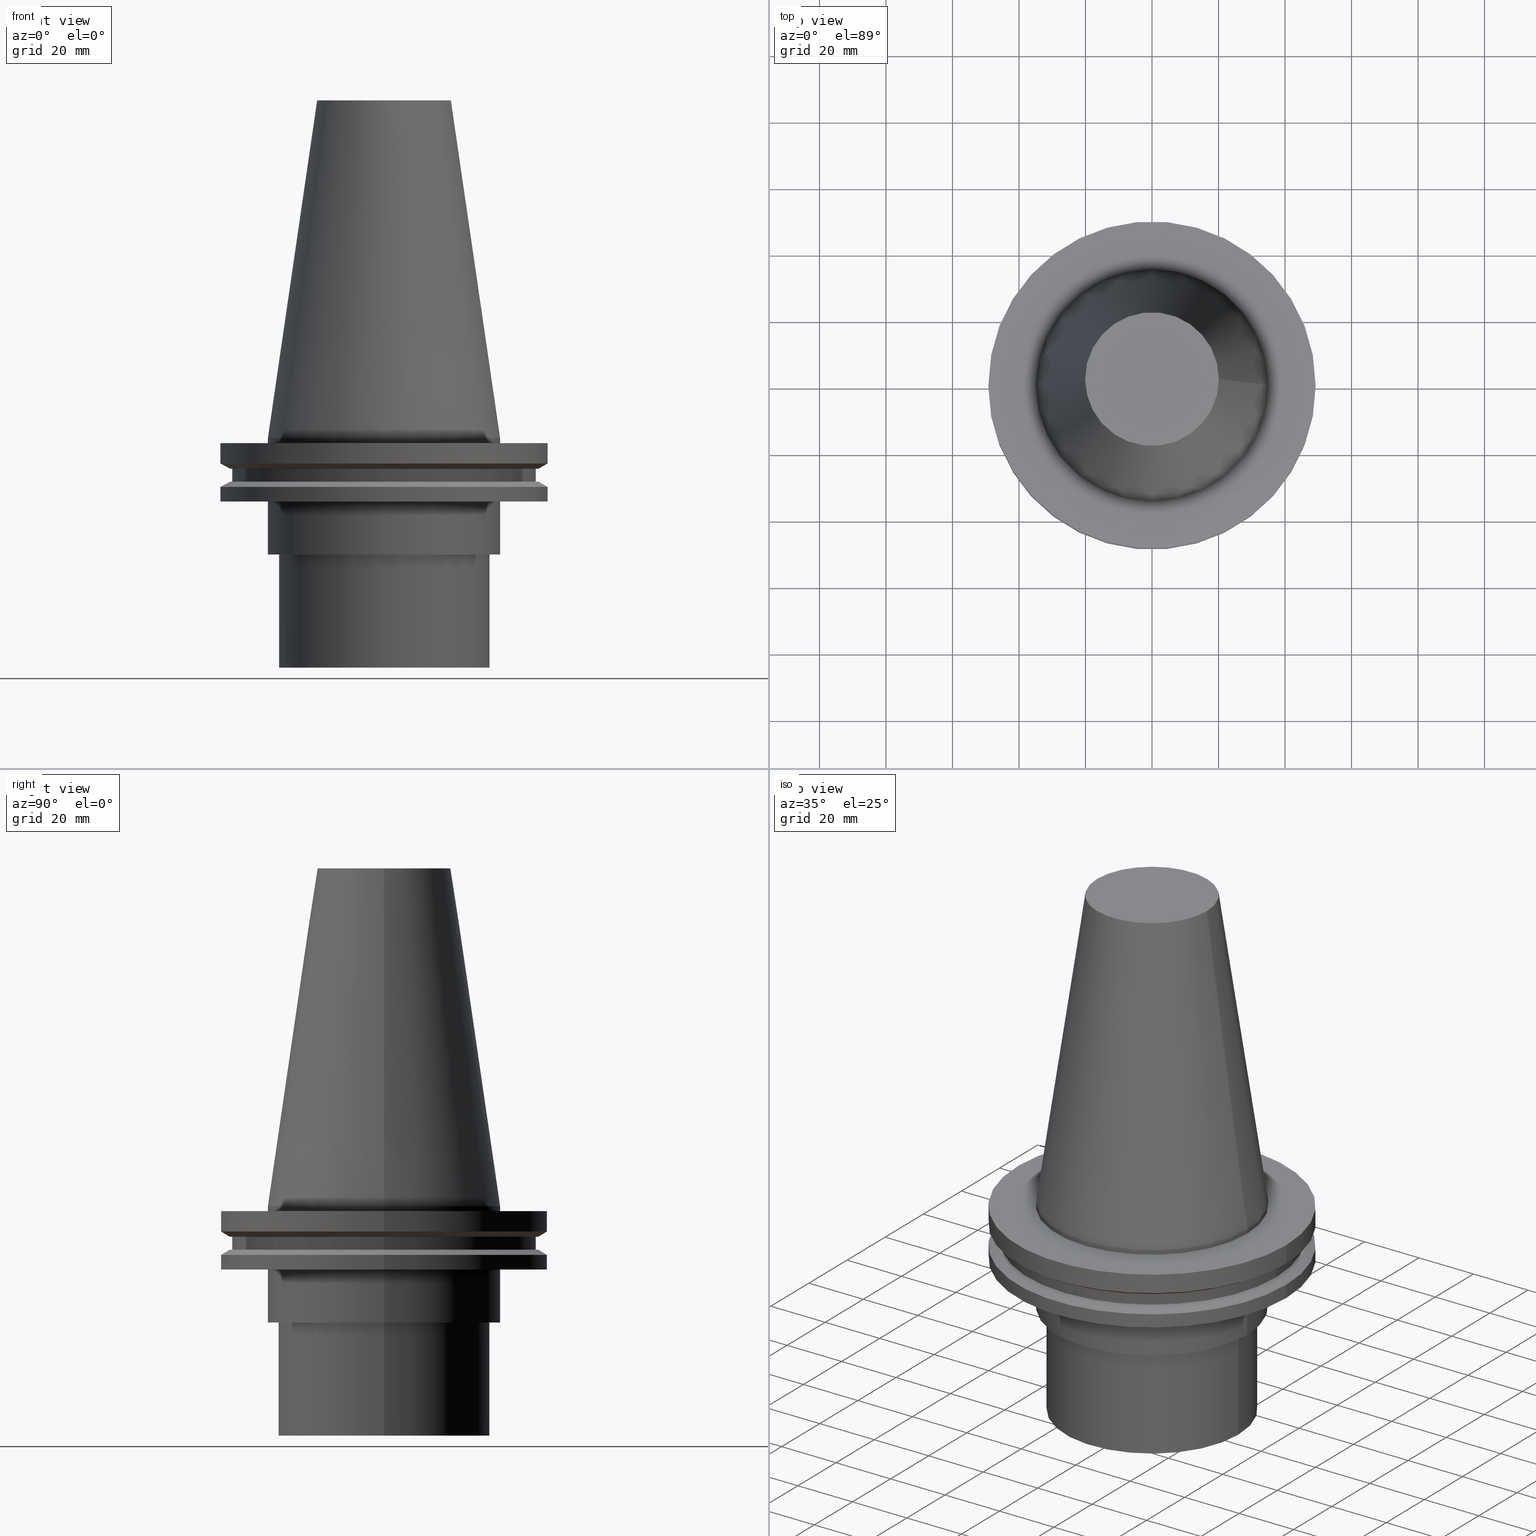
[diagram: canonical four-view strip — front | top / right | iso, engineering-drawing reading convention]
A machine part, canonical four-view strip (front | top / right | iso — engineering-drawing reading convention). The complete STEP part file that produces these views, byte-faithful:
ISO-10303-21;
HEADER;
FILE_DESCRIPTION (( 'STEP AP203' ),
    '1' );
FILE_NAME ('11.368.662.stp',
    '2022-03-09T15:21:46',
    ( '' ),
    ( '' ),
    'SwSTEP 2.0',
    'SolidWorks 2021',
    '' );
FILE_SCHEMA (( 'CONFIG_CONTROL_DESIGN' ));
ENDSEC;

DATA;
#1 = CARTESIAN_POINT ( 'NONE',  ( 0.000000000000000000, 0.000000000000000000, 101.5999999999999943 ) ) ;
#2 = AXIS2_PLACEMENT_3D ( 'NONE', #6, #103, #231 ) ;
#3 = PERSON_AND_ORGANIZATION_ROLE ( 'classification_officer' ) ;
#4 = EDGE_LOOP ( 'NONE', ( #79 ) ) ;
#5 = ORIENTED_EDGE ( 'NONE', *, *, #161, .T. ) ;
#6 = CARTESIAN_POINT ( 'NONE',  ( 0.000000000000000000, 0.000000000000000000, -19.04999999999999716 ) ) ;
#7 = UNCERTAINTY_MEASURE_WITH_UNIT (LENGTH_MEASURE( 1.000000000000000082E-05 ), #207, 'distance_accuracy_value', 'NONE');
#8 = FACE_OUTER_BOUND ( 'NONE', #294, .T. ) ;
#9 = APPROVAL_PERSON_ORGANIZATION ( #220, #266, #92 ) ;
#10 = ORIENTED_EDGE ( 'NONE', *, *, #45, .T. ) ;
#11 = ADVANCED_FACE ( 'NONE', ( #205, #357 ), #360, .F. ) ;
#12 = ADVANCED_FACE ( 'NONE', ( #273 ), #208, .F. ) ;
#13 = DIRECTION ( 'NONE',  ( -1.000000000000000000, 0.000000000000000000, -0.000000000000000000 ) ) ;
#14 = CARTESIAN_POINT ( 'NONE',  ( 0.000000000000000000, 0.000000000000000000, -9.204999999999991189 ) ) ;
#15 = DIRECTION ( 'NONE',  ( 1.000000000000000000, 0.000000000000000000, 0.000000000000000000 ) ) ;
#16 = AXIS2_PLACEMENT_3D ( 'NONE', #381, #241, #265 ) ;
#17 = AXIS2_PLACEMENT_3D ( 'NONE', #90, #144, #242 ) ;
#18 = CARTESIAN_POINT ( 'NONE',  ( 0.000000000000000000, 0.000000000000000000, -14.65761014474876944 ) ) ;
#19 = DIRECTION ( 'NONE',  ( -0.000000000000000000, -0.000000000000000000, 1.000000000000000000 ) ) ;
#20 = ADVANCED_FACE ( 'NONE', ( #322, #54 ), #301, .T. ) ;
#21 = CARTESIAN_POINT ( 'NONE',  ( 0.000000000000000000, 45.64500000000000313, -13.05499999999999794 ) ) ;
#22 = FACE_BOUND ( 'NONE', #102, .T. ) ;
#23 = CIRCLE ( 'NONE', #165, 31.75000000000000000 ) ;
#24 = APPLICATION_PROTOCOL_DEFINITION ( 'international standard', 'config_control_design', 1994, #38 ) ;
#25 = CIRCLE ( 'NONE', #250, 45.64500000000000313 ) ;
#26 = CARTESIAN_POINT ( 'NONE',  ( 0.000000000000000000, 0.000000000000000000, -13.05499999999999794 ) ) ;
#27 = VERTEX_POINT ( 'NONE', #141 ) ;
#28 = CARTESIAN_POINT ( 'NONE',  ( 20.10819343178871321, 0.000000000000000000, 101.5999999999999801 ) ) ;
#29 = PERSON_AND_ORGANIZATION ( #358, #109 ) ;
#30 = DATE_AND_TIME ( #65, #185 ) ;
#31 = DIRECTION ( 'NONE',  ( 0.000000000000000000, -0.000000000000000000, 1.000000000000000000 ) ) ;
#32 = DATE_AND_TIME ( #312, #147 ) ;
#33 = CIRCLE ( 'NONE', #383, 34.92499999999999005 ) ;
#34 = ORIENTED_EDGE ( 'NONE', *, *, #350, .F. ) ;
#35 = EDGE_LOOP ( 'NONE', ( #130 ) ) ;
#36 = CC_DESIGN_DATE_AND_TIME_ASSIGNMENT ( #30, #246, ( #372 ) ) ;
#37 = DIRECTION ( 'NONE',  ( 0.000000000000000000, 0.000000000000000000, -1.000000000000000000 ) ) ;
#38 = APPLICATION_CONTEXT ( 'configuration controlled 3d designs of mechanical parts and assemblies' ) ;
#39 = ORIENTED_EDGE ( 'NONE', *, *, #218, .F. ) ;
#40 = DIRECTION ( 'NONE',  ( -0.000000000000000000, -0.000000000000000000, 1.000000000000000000 ) ) ;
#41 = CIRCLE ( 'NONE', #138, 45.64500000000000313 ) ;
#42 = ORIENTED_EDGE ( 'NONE', *, *, #240, .T. ) ;
#43 = DESIGN_CONTEXT ( 'detailed design', #186, 'design' ) ;
#44 = PLANE ( 'NONE',  #91 ) ;
#45 = EDGE_CURVE ( 'NONE', #111, #111, #23, .T. ) ;
#46 = SECURITY_CLASSIFICATION ( '', '', #283 ) ;
#47 = EDGE_LOOP ( 'NONE', ( #321 ) ) ;
#48 = EDGE_CURVE ( 'NONE', #60, #60, #390, .T. ) ;
#49 = CARTESIAN_POINT ( 'NONE',  ( 0.000000000000000000, 0.000000000000000000, 101.5999999999999801 ) ) ;
#50 = FACE_BOUND ( 'NONE', #192, .T. ) ;
#51 = CARTESIAN_POINT ( 'NONE',  ( 0.000000000000000000, 0.000000000000000000, -35.00000000000000000 ) ) ;
#52 = CIRCLE ( 'NONE', #59, 49.21499999999998920 ) ;
#53 = LOCAL_TIME ( 9, 21, 46.00000000000000000, #334 ) ;
#54 = FACE_OUTER_BOUND ( 'NONE', #166, .T. ) ;
#55 = APPROVAL ( #282, 'UNSPECIFIED' ) ;
#56 = CARTESIAN_POINT ( 'NONE',  ( 0.000000000000000000, 20.10819343178871321, 101.5999999999999943 ) ) ;
#57 = PLANE ( 'NONE',  #375 ) ;
#58 = VERTEX_POINT ( 'NONE', #116 ) ;
#59 = AXIS2_PLACEMENT_3D ( 'NONE', #213, #332, #303 ) ;
#60 = VERTEX_POINT ( 'NONE', #82 ) ;
#61 = MECHANICAL_CONTEXT ( 'NONE', #38, 'mechanical' ) ;
#62 = CALENDAR_DATE ( 2022, 9, 3 ) ;
#63 = CC_DESIGN_APPROVAL ( #266, ( #174 ) ) ;
#64 = EDGE_CURVE ( 'NONE', #182, #182, #133, .T. ) ;
#65 = CALENDAR_DATE ( 2022, 9, 3 ) ;
#66 = DIRECTION ( 'NONE',  ( -0.000000000000000000, -0.000000000000000000, 1.000000000000000000 ) ) ;
#67 = APPROVAL_ROLE ( '' ) ;
#68 = ORIENTED_EDGE ( 'NONE', *, *, #69, .F. ) ;
#69 = EDGE_CURVE ( 'NONE', #364, #364, #211, .T. ) ;
#70 = AXIS2_PLACEMENT_3D ( 'NONE', #171, #295, #287 ) ;
#71 = EDGE_LOOP ( 'NONE', ( #230 ) ) ;
#72 = DIRECTION ( 'NONE',  ( 1.000000000000000000, 0.000000000000000000, 0.000000000000000000 ) ) ;
#73 = EDGE_LOOP ( 'NONE', ( #259 ) ) ;
#74 = DIRECTION ( 'NONE',  ( 1.000000000000000000, 0.000000000000000000, 0.000000000000000000 ) ) ;
#75 = EDGE_LOOP ( 'NONE', ( #39 ) ) ;
#76 = ADVANCED_FACE ( 'NONE', ( #203, #176 ), #170, .T. ) ;
#77 = CARTESIAN_POINT ( 'NONE',  ( 0.000000000000000000, 0.000000000000000000, -69.00000000000000000 ) ) ;
#78 = AXIS2_PLACEMENT_3D ( 'NONE', #77, #135, #257 ) ;
#79 = ORIENTED_EDGE ( 'NONE', *, *, #161, .F. ) ;
#80 = DIRECTION ( 'NONE',  ( 1.000000000000000000, 0.000000000000000000, 0.000000000000000000 ) ) ;
#81 = DIRECTION ( 'NONE',  ( -0.000000000000000000, -0.000000000000000000, 1.000000000000000000 ) ) ;
#82 = CARTESIAN_POINT ( 'NONE',  ( 49.21499999999999631, 0.000000000000000000, -1.499999999999987566 ) ) ;
#83 = CARTESIAN_POINT ( 'NONE',  ( 34.92499999999999005, 0.000000000000000000, -1.499999999999987566 ) ) ;
#84 = CC_DESIGN_PERSON_AND_ORGANIZATION_ASSIGNMENT ( #219, #94, ( #261 ) ) ;
#85 = FACE_OUTER_BOUND ( 'NONE', #99, .T. ) ;
#86 = DIRECTION ( 'NONE',  ( -0.000000000000000000, -0.000000000000000000, 1.000000000000000000 ) ) ;
#87 = FACE_OUTER_BOUND ( 'NONE', #286, .T. ) ;
#88 = CARTESIAN_POINT ( 'NONE',  ( 0.000000000000000000, 46.43919780457007818, -9.204999999999998295 ) ) ;
#89 = CARTESIAN_POINT ( 'NONE',  ( 31.75000000000000000, 0.000000000000000000, -69.00000000000000000 ) ) ;
#90 = CARTESIAN_POINT ( 'NONE',  ( 0.000000000000000000, 0.000000000000000000, -7.602389855251287187 ) ) ;
#91 = AXIS2_PLACEMENT_3D ( 'NONE', #167, #292, #244 ) ;
#92 = APPROVAL_ROLE ( '' ) ;
#93 = EDGE_CURVE ( 'NONE', #209, #209, #41, .T. ) ;
#94 = PERSON_AND_ORGANIZATION_ROLE ( 'design_owner' ) ;
#95 = APPROVAL_ROLE ( '' ) ;
#96 = EDGE_LOOP ( 'NONE', ( #313 ) ) ;
#97 = DATE_AND_TIME ( #254, #53 ) ;
#98 = ADVANCED_FACE ( 'NONE', ( #359, #140 ), #107, .T. ) ;
#99 = EDGE_LOOP ( 'NONE', ( #190 ) ) ;
#100 = ORIENTED_EDGE ( 'NONE', *, *, #93, .T. ) ;
#101 =( GEOMETRIC_REPRESENTATION_CONTEXT ( 3 ) GLOBAL_UNCERTAINTY_ASSIGNED_CONTEXT ( ( #7 ) ) GLOBAL_UNIT_ASSIGNED_CONTEXT ( ( #207, #175, #387 ) ) REPRESENTATION_CONTEXT ( 'NONE', 'WORKASPACE' ) );
#102 = EDGE_LOOP ( 'NONE', ( #100 ) ) ;
#103 = DIRECTION ( 'NONE',  ( -0.000000000000000000, -0.000000000000000000, 1.000000000000000000 ) ) ;
#104 = ORIENTED_EDGE ( 'NONE', *, *, #145, .F. ) ;
#105 = PLANE ( 'NONE',  #146 ) ;
#106 = AXIS2_PLACEMENT_3D ( 'NONE', #275, #113, #392 ) ;
#107 = CYLINDRICAL_SURFACE ( 'NONE', #310, 34.92499999999999005 ) ;
#108 = DIRECTION ( 'NONE',  ( 0.000000000000000000, 0.000000000000000000, -1.000000000000000000 ) ) ;
#109 = ORGANIZATION ( 'UNSPECIFIED', 'UNSPECIFIED', '' ) ;
#110 = DIRECTION ( 'NONE',  ( -0.000000000000000000, -0.000000000000000000, 1.000000000000000000 ) ) ;
#111 = VERTEX_POINT ( 'NONE', #237 ) ;
#112 = VERTEX_POINT ( 'NONE', #83 ) ;
#113 = DIRECTION ( 'NONE',  ( 0.000000000000000000, 0.000000000000000000, -1.000000000000000000 ) ) ;
#114 = DIRECTION ( 'NONE',  ( -1.000000000000000000, 0.000000000000000000, -0.000000000000000000 ) ) ;
#115 = AXIS2_PLACEMENT_3D ( 'NONE', #21, #239, #13 ) ;
#116 = CARTESIAN_POINT ( 'NONE',  ( 34.92499999999999716, 0.000000000000000000, -19.04999999999999716 ) ) ;
#117 = CARTESIAN_POINT ( 'NONE',  ( 0.000000000000000000, 0.000000000000000000, 101.5999999999999943 ) ) ;
#118 = DIRECTION ( 'NONE',  ( 0.000000000000000000, 0.000000000000000000, 1.000000000000000000 ) ) ;
#119 = CARTESIAN_POINT ( 'NONE',  ( 34.92499999999999005, 0.000000000000000000, 0.000000000000000000 ) ) ;
#120 = DATE_AND_TIME ( #62, #121 ) ;
#121 = LOCAL_TIME ( 9, 21, 46.00000000000000000, #279 ) ;
#122 = VERTEX_POINT ( 'NONE', #281 ) ;
#123 = CC_DESIGN_PERSON_AND_ORGANIZATION_ASSIGNMENT ( #29, #3, ( #46 ) ) ;
#124 = APPROVAL_DATE_TIME ( #32, #266 ) ;
#125 = CALENDAR_DATE ( 2022, 9, 3 ) ;
#126 = CIRCLE ( 'NONE', #158, 34.92499999999999005 ) ;
#127 = EDGE_LOOP ( 'NONE', ( #163 ) ) ;
#128 = CC_DESIGN_DATE_AND_TIME_ASSIGNMENT ( #373, #129, ( #46 ) ) ;
#129 = DATE_TIME_ROLE ( 'classification_date' ) ;
#130 = ORIENTED_EDGE ( 'NONE', *, *, #64, .F. ) ;
#131 = ORIENTED_EDGE ( 'NONE', *, *, #48, .F. ) ;
#132 = ADVANCED_FACE ( 'NONE', ( #87, #299 ), #142, .T. ) ;
#133 = CIRCLE ( 'NONE', #304, 49.21499999999998920 ) ;
#134 = EDGE_LOOP ( 'NONE', ( #253 ) ) ;
#135 = DIRECTION ( 'NONE',  ( -0.000000000000000000, -0.000000000000000000, 1.000000000000000000 ) ) ;
#136 = DIRECTION ( 'NONE',  ( 0.000000000000000000, 0.000000000000000000, -1.000000000000000000 ) ) ;
#137 = CARTESIAN_POINT ( 'NONE',  ( 0.000000000000000000, 0.000000000000000000, -9.204999999999991189 ) ) ;
#138 = AXIS2_PLACEMENT_3D ( 'NONE', #326, #177, #15 ) ;
#139 = AXIS2_PLACEMENT_3D ( 'NONE', #88, #385, #306 ) ;
#140 = FACE_OUTER_BOUND ( 'NONE', #200, .T. ) ;
#141 = CARTESIAN_POINT ( 'NONE',  ( 49.21500000000000341, 0.000000000000000000, -7.602389855251287187 ) ) ;
#142 = CYLINDRICAL_SURFACE ( 'NONE', #224, 49.21499999999999631 ) ;
#143 = DIRECTION ( 'NONE',  ( -0.000000000000000000, -0.000000000000000000, 1.000000000000000000 ) ) ;
#144 = DIRECTION ( 'NONE',  ( -0.000000000000000000, -0.000000000000000000, 1.000000000000000000 ) ) ;
#145 = EDGE_CURVE ( 'NONE', #329, #329, #342, .T. ) ;
#146 = AXIS2_PLACEMENT_3D ( 'NONE', #289, #108, #355 ) ;
#147 = LOCAL_TIME ( 9, 21, 46.00000000000000000, #311 ) ;
#148 = ADVANCED_FACE ( 'NONE', ( #271, #386 ), #258, .T. ) ;
#149 = DIRECTION ( 'NONE',  ( 1.000000000000000000, 0.000000000000000000, 0.000000000000000000 ) ) ;
#150 = DIRECTION ( 'NONE',  ( -0.000000000000000000, -0.000000000000000000, 1.000000000000000000 ) ) ;
#151 = DIRECTION ( 'NONE',  ( 1.000000000000000000, 0.000000000000000000, 0.000000000000000000 ) ) ;
#152 = FACE_OUTER_BOUND ( 'NONE', #232, .T. ) ;
#153 = CARTESIAN_POINT ( 'NONE',  ( 45.64500000000000313, 0.000000000000000000, -9.204999999999991189 ) ) ;
#154 = APPROVAL_STATUS ( 'not_yet_approved' ) ;
#155 = ADVANCED_FACE ( 'NONE', ( #85, #362 ), #57, .F. ) ;
#156 = ADVANCED_FACE ( 'NONE', ( #210, #152 ), #215, .T. ) ;
#157 = PERSON_AND_ORGANIZATION ( #358, #109 ) ;
#158 = AXIS2_PLACEMENT_3D ( 'NONE', #197, #229, #380 ) ;
#159 = ORIENTED_EDGE ( 'NONE', *, *, #262, .T. ) ;
#160 = ORIENTED_EDGE ( 'NONE', *, *, #69, .T. ) ;
#161 = EDGE_CURVE ( 'NONE', #122, #122, #25, .T. ) ;
#162 = DIRECTION ( 'NONE',  ( -1.000000000000000000, 0.000000000000000000, 0.000000000000000000 ) ) ;
#163 = ORIENTED_EDGE ( 'NONE', *, *, #320, .T. ) ;
#164 = FACE_BOUND ( 'NONE', #256, .T. ) ;
#165 = AXIS2_PLACEMENT_3D ( 'NONE', #51, #143, #80 ) ;
#166 = EDGE_LOOP ( 'NONE', ( #221 ) ) ;
#167 = CARTESIAN_POINT ( 'NONE',  ( 0.000000000000000000, 31.75000000000000000, -69.00000000000000000 ) ) ;
#168 = EDGE_LOOP ( 'NONE', ( #228 ) ) ;
#169 = FACE_OUTER_BOUND ( 'NONE', #73, .T. ) ;
#170 = CYLINDRICAL_SURFACE ( 'NONE', #184, 34.92499999999999716 ) ;
#171 = CARTESIAN_POINT ( 'NONE',  ( 0.000000000000000000, 34.92499999999999716, -35.00000000000000000 ) ) ;
#172 = AXIS2_PLACEMENT_3D ( 'NONE', #202, #323, #74 ) ;
#173 = DIRECTION ( 'NONE',  ( 1.000000000000000000, 0.000000000000000000, 0.000000000000000000 ) ) ;
#174 = PRODUCT_DEFINITION_FORMATION_WITH_SPECIFIED_SOURCE ( 'ANY', '', #261, .NOT_KNOWN. ) ;
#175 =( NAMED_UNIT ( * ) PLANE_ANGLE_UNIT ( ) SI_UNIT ( $, .RADIAN. ) );
#176 = FACE_OUTER_BOUND ( 'NONE', #316, .T. ) ;
#177 = DIRECTION ( 'NONE',  ( -0.000000000000000000, -0.000000000000000000, 1.000000000000000000 ) ) ;
#178 = DIRECTION ( 'NONE',  ( 1.000000000000000000, 0.000000000000000000, 0.000000000000000000 ) ) ;
#179 = CIRCLE ( 'NONE', #2, 34.92499999999999716 ) ;
#180 = CC_DESIGN_APPROVAL ( #196, ( #372 ) ) ;
#181 = PERSON_AND_ORGANIZATION ( #358, #109 ) ;
#182 = VERTEX_POINT ( 'NONE', #366 ) ;
#183 = COORDINATED_UNIVERSAL_TIME_OFFSET ( 6, 0, .BEHIND. ) ;
#184 = AXIS2_PLACEMENT_3D ( 'NONE', #206, #388, #296 ) ;
#185 = LOCAL_TIME ( 9, 21, 46.00000000000000000, #183 ) ;
#186 = APPLICATION_CONTEXT ( 'configuration controlled 3d designs of mechanical parts and assemblies' ) ;
#187 = ADVANCED_FACE ( 'NONE', ( #367, #331 ), #337, .T. ) ;
#188 = ADVANCED_FACE ( 'NONE', ( #333, #169 ), #260, .F. ) ;
#189 = PERSON_AND_ORGANIZATION ( #358, #109 ) ;
#190 = ORIENTED_EDGE ( 'NONE', *, *, #377, .F. ) ;
#191 = CIRCLE ( 'NONE', #225, 46.43919780457007818 ) ;
#192 = EDGE_LOOP ( 'NONE', ( #68 ) ) ;
#193 = CARTESIAN_POINT ( 'NONE',  ( 0.000000000000000000, 0.000000000000000000, 0.000000000000000000 ) ) ;
#194 = PRODUCT_DEFINITION_SHAPE ( 'NONE', 'NONE',  #372 ) ;
#195 = EDGE_LOOP ( 'NONE', ( #104 ) ) ;
#196 = APPROVAL ( #154, 'UNSPECIFIED' ) ;
#197 = CARTESIAN_POINT ( 'NONE',  ( 0.000000000000000000, 0.000000000000000000, 0.000000000000000000 ) ) ;
#198 = EDGE_LOOP ( 'NONE', ( #34 ) ) ;
#199 = DIRECTION ( 'NONE',  ( 1.000000000000000000, 0.000000000000000000, 0.000000000000000000 ) ) ;
#200 = EDGE_LOOP ( 'NONE', ( #159 ) ) ;
#201 = EDGE_CURVE ( 'NONE', #307, #307, #191, .T. ) ;
#202 = CARTESIAN_POINT ( 'NONE',  ( 0.000000000000000000, 0.000000000000000000, -35.00000000000000000 ) ) ;
#203 = FACE_OUTER_BOUND ( 'NONE', #96, .T. ) ;
#204 = CARTESIAN_POINT ( 'NONE',  ( 49.21499999999998920, 0.000000000000000000, -19.04999999999999716 ) ) ;
#205 = FACE_BOUND ( 'NONE', #4, .T. ) ;
#206 = CARTESIAN_POINT ( 'NONE',  ( 0.000000000000000000, 0.000000000000000000, 101.5999999999999943 ) ) ;
#207 =( LENGTH_UNIT ( ) NAMED_UNIT ( * ) SI_UNIT ( .MILLI., .METRE. ) );
#208 = PLANE ( 'NONE',  #338 ) ;
#209 = VERTEX_POINT ( 'NONE', #153 ) ;
#210 = FACE_OUTER_BOUND ( 'NONE', #284, .T. ) ;
#211 = CIRCLE ( 'NONE', #267, 20.10819343178871321 ) ;
#212 = CIRCLE ( 'NONE', #78, 31.75000000000000000 ) ;
#213 = CARTESIAN_POINT ( 'NONE',  ( 0.000000000000000000, 0.000000000000000000, -19.04999999999999716 ) ) ;
#214 = CC_DESIGN_PERSON_AND_ORGANIZATION_ASSIGNMENT ( #181, #368, ( #372 ) ) ;
#215 = CYLINDRICAL_SURFACE ( 'NONE', #330, 45.64500000000000313 ) ;
#216 = COORDINATED_UNIVERSAL_TIME_OFFSET ( 6, 0, .BEHIND. ) ;
#217 = DIRECTION ( 'NONE',  ( -0.000000000000000000, -0.000000000000000000, 1.000000000000000000 ) ) ;
#218 = EDGE_CURVE ( 'NONE', #274, #274, #212, .T. ) ;
#219 = PERSON_AND_ORGANIZATION ( #358, #109 ) ;
#220 = PERSON_AND_ORGANIZATION ( #358, #109 ) ;
#221 = ORIENTED_EDGE ( 'NONE', *, *, #377, .T. ) ;
#222 = EDGE_LOOP ( 'NONE', ( #376 ) ) ;
#223 = FACE_OUTER_BOUND ( 'NONE', #198, .T. ) ;
#224 = AXIS2_PLACEMENT_3D ( 'NONE', #117, #327, #302 ) ;
#225 = AXIS2_PLACEMENT_3D ( 'NONE', #14, #40, #378 ) ;
#226 = LOCAL_TIME ( 9, 21, 46.00000000000000000, #216 ) ;
#227 = ADVANCED_FACE ( 'NONE', ( #223, #264 ), #319, .T. ) ;
#228 = ORIENTED_EDGE ( 'NONE', *, *, #350, .T. ) ;
#229 = DIRECTION ( 'NONE',  ( -0.000000000000000000, -0.000000000000000000, 1.000000000000000000 ) ) ;
#230 = ORIENTED_EDGE ( 'NONE', *, *, #218, .T. ) ;
#231 = DIRECTION ( 'NONE',  ( 1.000000000000000000, 0.000000000000000000, 0.000000000000000000 ) ) ;
#232 = EDGE_LOOP ( 'NONE', ( #5 ) ) ;
#233 = DIRECTION ( 'NONE',  ( -0.000000000000000000, -0.000000000000000000, 1.000000000000000000 ) ) ;
#234 = DIRECTION ( 'NONE',  ( 1.000000000000000000, 0.000000000000000000, 0.000000000000000000 ) ) ;
#235 = CC_DESIGN_PERSON_AND_ORGANIZATION_ASSIGNMENT ( #370, #340, ( #174 ) ) ;
#236 = CARTESIAN_POINT ( 'NONE',  ( 0.000000000000000000, 0.000000000000000000, -13.05499999999999794 ) ) ;
#237 = CARTESIAN_POINT ( 'NONE',  ( 31.75000000000000000, 0.000000000000000000, -35.00000000000000000 ) ) ;
#238 = CARTESIAN_POINT ( 'NONE',  ( 34.92499999999999716, 0.000000000000000000, -35.00000000000000000 ) ) ;
#239 = DIRECTION ( 'NONE',  ( 0.000000000000000000, 0.000000000000000000, -1.000000000000000000 ) ) ;
#240 = EDGE_CURVE ( 'NONE', #389, #389, #126, .T. ) ;
#241 = DIRECTION ( 'NONE',  ( -0.000000000000000000, -0.000000000000000000, 1.000000000000000000 ) ) ;
#242 = DIRECTION ( 'NONE',  ( 1.000000000000000000, 0.000000000000000000, 0.000000000000000000 ) ) ;
#243 = DIRECTION ( 'NONE',  ( 1.000000000000000000, 0.000000000000000000, 0.000000000000000000 ) ) ;
#244 = DIRECTION ( 'NONE',  ( 1.000000000000000000, 0.000000000000000000, 0.000000000000000000 ) ) ;
#245 = MANIFOLD_SOLID_BREP ( 'CKB', #290 ) ;
#246 = DATE_TIME_ROLE ( 'creation_date' ) ;
#247 = APPROVAL_DATE_TIME ( #97, #55 ) ;
#248 = DIRECTION ( 'NONE',  ( 1.000000000000000000, 0.000000000000000000, 0.000000000000000000 ) ) ;
#249 = ADVANCED_FACE ( 'NONE', ( #164, #351 ), #105, .F. ) ;
#250 = AXIS2_PLACEMENT_3D ( 'NONE', #26, #217, #149 ) ;
#251 = PERSON_AND_ORGANIZATION ( #358, #109 ) ;
#252 = APPROVAL_PERSON_ORGANIZATION ( #251, #55, #95 ) ;
#253 = ORIENTED_EDGE ( 'NONE', *, *, #48, .T. ) ;
#254 = CALENDAR_DATE ( 2022, 9, 3 ) ;
#255 = ORIENTED_EDGE ( 'NONE', *, *, #201, .F. ) ;
#256 = EDGE_LOOP ( 'NONE', ( #291 ) ) ;
#257 = DIRECTION ( 'NONE',  ( 1.000000000000000000, 0.000000000000000000, 0.000000000000000000 ) ) ;
#258 = CONICAL_SURFACE ( 'NONE', #106, 49.21499999999998920, 1.047197551196554333 ) ;
#259 = ORIENTED_EDGE ( 'NONE', *, *, #272, .F. ) ;
#260 = PLANE ( 'NONE',  #70 ) ;
#261 = PRODUCT ( '11.368.662', '11.368.662', '', ( #61 ) ) ;
#262 = EDGE_CURVE ( 'NONE', #112, #112, #33, .T. ) ;
#263 = ORIENTED_EDGE ( 'NONE', *, *, #240, .F. ) ;
#264 = FACE_BOUND ( 'NONE', #352, .T. ) ;
#265 = DIRECTION ( 'NONE',  ( 1.000000000000000000, 0.000000000000000000, 0.000000000000000000 ) ) ;
#266 = APPROVAL ( #309, 'UNSPECIFIED' ) ;
#267 = AXIS2_PLACEMENT_3D ( 'NONE', #49, #324, #384 ) ;
#268 = CONICAL_SURFACE ( 'NONE', #353, 34.92499999999999005, 0.1448138465474119452 ) ;
#269 = CARTESIAN_POINT ( 'NONE',  ( 0.000000000000000000, 0.000000000000000000, 101.5999999999999943 ) ) ;
#270 = PLANE ( 'NONE',  #139 ) ;
#271 = FACE_BOUND ( 'NONE', #195, .T. ) ;
#272 = EDGE_CURVE ( 'NONE', #328, #328, #297, .T. ) ;
#273 = FACE_OUTER_BOUND ( 'NONE', #288, .T. ) ;
#274 = VERTEX_POINT ( 'NONE', #89 ) ;
#275 = CARTESIAN_POINT ( 'NONE',  ( 0.000000000000000000, 0.000000000000000000, -14.65761014474876944 ) ) ;
#276 = AXIS2_PLACEMENT_3D ( 'NONE', #278, #118, #151 ) ;
#277 = FACE_OUTER_BOUND ( 'NONE', #347, .T. ) ;
#278 = CARTESIAN_POINT ( 'NONE',  ( 0.000000000000000000, 0.000000000000000000, 0.000000000000000000 ) ) ;
#279 = COORDINATED_UNIVERSAL_TIME_OFFSET ( 6, 0, .BEHIND. ) ;
#280 = AXIS2_PLACEMENT_3D ( 'NONE', #236, #81, #243 ) ;
#281 = CARTESIAN_POINT ( 'NONE',  ( 45.64500000000000313, 0.000000000000000000, -13.05499999999999794 ) ) ;
#282 = APPROVAL_STATUS ( 'not_yet_approved' ) ;
#283 = SECURITY_CLASSIFICATION_LEVEL ( 'unclassified' ) ;
#284 = EDGE_LOOP ( 'NONE', ( #374 ) ) ;
#285 = ADVANCED_BREP_SHAPE_REPRESENTATION ( '11.368.662', ( #245, #276 ), #101 ) ;
#286 = EDGE_LOOP ( 'NONE', ( #131 ) ) ;
#287 = DIRECTION ( 'NONE',  ( 1.000000000000000000, 0.000000000000000000, 0.000000000000000000 ) ) ;
#288 = EDGE_LOOP ( 'NONE', ( #160 ) ) ;
#289 = CARTESIAN_POINT ( 'NONE',  ( 0.000000000000000000, 49.21499999999999631, -1.499999999999992895 ) ) ;
#290 = CLOSED_SHELL ( 'NONE', ( #293, #12, #188, #76, #155, #20, #148, #11, #156, #391, #227, #132, #249, #98, #187, #335 ) ) ;
#291 = ORIENTED_EDGE ( 'NONE', *, *, #262, .F. ) ;
#292 = DIRECTION ( 'NONE',  ( 0.000000000000000000, -0.000000000000000000, 1.000000000000000000 ) ) ;
#293 = ADVANCED_FACE ( 'NONE', ( #50, #8 ), #268, .T. ) ;
#294 = EDGE_LOOP ( 'NONE', ( #42 ) ) ;
#295 = DIRECTION ( 'NONE',  ( 0.000000000000000000, -0.000000000000000000, 1.000000000000000000 ) ) ;
#296 = DIRECTION ( 'NONE',  ( 1.000000000000000000, 0.000000000000000000, 0.000000000000000000 ) ) ;
#297 = CIRCLE ( 'NONE', #172, 34.92499999999999716 ) ;
#298 = APPROVAL_PERSON_ORGANIZATION ( #189, #196, #67 ) ;
#299 = FACE_OUTER_BOUND ( 'NONE', #168, .T. ) ;
#300 = PRODUCT_RELATED_PRODUCT_CATEGORY ( 'detail', '', ( #261 ) ) ;
#301 = CYLINDRICAL_SURFACE ( 'NONE', #382, 49.21499999999998920 ) ;
#302 = DIRECTION ( 'NONE',  ( 1.000000000000000000, 0.000000000000000000, 0.000000000000000000 ) ) ;
#303 = DIRECTION ( 'NONE',  ( 1.000000000000000000, 0.000000000000000000, 0.000000000000000000 ) ) ;
#304 = AXIS2_PLACEMENT_3D ( 'NONE', #18, #19, #173 ) ;
#305 = AXIS2_PLACEMENT_3D ( 'NONE', #137, #345, #199 ) ;
#306 = DIRECTION ( 'NONE',  ( 1.000000000000000000, 0.000000000000000000, 0.000000000000000000 ) ) ;
#307 = VERTEX_POINT ( 'NONE', #363 ) ;
#308 = SHAPE_DEFINITION_REPRESENTATION ( #194, #285 ) ;
#309 = APPROVAL_STATUS ( 'not_yet_approved' ) ;
#310 = AXIS2_PLACEMENT_3D ( 'NONE', #269, #110, #234 ) ;
#311 = COORDINATED_UNIVERSAL_TIME_OFFSET ( 6, 0, .BEHIND. ) ;
#312 = CALENDAR_DATE ( 2022, 9, 3 ) ;
#313 = ORIENTED_EDGE ( 'NONE', *, *, #320, .F. ) ;
#314 = CIRCLE ( 'NONE', #17, 49.21500000000000341 ) ;
#315 = ORIENTED_EDGE ( 'NONE', *, *, #272, .T. ) ;
#316 = EDGE_LOOP ( 'NONE', ( #315 ) ) ;
#317 = EDGE_LOOP ( 'NONE', ( #371 ) ) ;
#318 = FACE_OUTER_BOUND ( 'NONE', #75, .T. ) ;
#319 = CONICAL_SURFACE ( 'NONE', #305, 46.43919780457007818, 1.047197551196575205 ) ;
#320 = EDGE_CURVE ( 'NONE', #58, #58, #179, .T. ) ;
#321 = ORIENTED_EDGE ( 'NONE', *, *, #64, .T. ) ;
#322 = FACE_OUTER_BOUND ( 'NONE', #35, .T. ) ;
#323 = DIRECTION ( 'NONE',  ( -0.000000000000000000, -0.000000000000000000, 1.000000000000000000 ) ) ;
#324 = DIRECTION ( 'NONE',  ( -0.000000000000000000, -0.000000000000000000, 1.000000000000000000 ) ) ;
#325 = CARTESIAN_POINT ( 'NONE',  ( 0.000000000000000000, 49.21499999999998920, -19.04999999999999716 ) ) ;
#326 = CARTESIAN_POINT ( 'NONE',  ( 0.000000000000000000, 0.000000000000000000, -9.204999999999991189 ) ) ;
#327 = DIRECTION ( 'NONE',  ( -0.000000000000000000, -0.000000000000000000, 1.000000000000000000 ) ) ;
#328 = VERTEX_POINT ( 'NONE', #238 ) ;
#329 = VERTEX_POINT ( 'NONE', #336 ) ;
#330 = AXIS2_PLACEMENT_3D ( 'NONE', #1, #66, #248 ) ;
#331 = FACE_OUTER_BOUND ( 'NONE', #71, .T. ) ;
#332 = DIRECTION ( 'NONE',  ( -0.000000000000000000, -0.000000000000000000, 1.000000000000000000 ) ) ;
#333 = FACE_BOUND ( 'NONE', #343, .T. ) ;
#334 = COORDINATED_UNIVERSAL_TIME_OFFSET ( 6, 0, .BEHIND. ) ;
#335 = ADVANCED_FACE ( 'NONE', ( #318 ), #44, .F. ) ;
#336 = CARTESIAN_POINT ( 'NONE',  ( 46.43919780457007818, 0.000000000000000000, -13.05499999999999794 ) ) ;
#337 = CYLINDRICAL_SURFACE ( 'NONE', #344, 31.75000000000000000 ) ;
#338 = AXIS2_PLACEMENT_3D ( 'NONE', #56, #136, #114 ) ;
#339 = DIRECTION ( 'NONE',  ( 1.000000000000000000, 0.000000000000000000, 0.000000000000000000 ) ) ;
#340 = PERSON_AND_ORGANIZATION_ROLE ( 'design_supplier' ) ;
#341 = APPLICATION_PROTOCOL_DEFINITION ( 'international standard', 'config_control_design', 1994, #186 ) ;
#342 = CIRCLE ( 'NONE', #280, 46.43919780457007818 ) ;
#343 = EDGE_LOOP ( 'NONE', ( #10 ) ) ;
#344 = AXIS2_PLACEMENT_3D ( 'NONE', #393, #150, #394 ) ;
#345 = DIRECTION ( 'NONE',  ( -0.000000000000000000, -0.000000000000000000, 1.000000000000000000 ) ) ;
#346 = CC_DESIGN_SECURITY_CLASSIFICATION ( #46, ( #174 ) ) ;
#347 = EDGE_LOOP ( 'NONE', ( #255 ) ) ;
#348 = CARTESIAN_POINT ( 'NONE',  ( 0.000000000000000000, 0.000000000000000000, -1.499999999999987566 ) ) ;
#349 = ORIENTED_EDGE ( 'NONE', *, *, #201, .T. ) ;
#350 = EDGE_CURVE ( 'NONE', #27, #27, #314, .T. ) ;
#351 = FACE_OUTER_BOUND ( 'NONE', #134, .T. ) ;
#352 = EDGE_LOOP ( 'NONE', ( #349 ) ) ;
#353 = AXIS2_PLACEMENT_3D ( 'NONE', #193, #37, #162 ) ;
#354 = CARTESIAN_POINT ( 'NONE',  ( 0.000000000000000000, 0.000000000000000000, 101.5999999999999943 ) ) ;
#355 = DIRECTION ( 'NONE',  ( -1.000000000000000000, 0.000000000000000000, -0.000000000000000000 ) ) ;
#356 = CC_DESIGN_PERSON_AND_ORGANIZATION_ASSIGNMENT ( #157, #395, ( #174 ) ) ;
#357 = FACE_OUTER_BOUND ( 'NONE', #317, .T. ) ;
#358 = PERSON ( 'UNSPECIFIED', 'UNSPECIFIED', 'UNSPECIFIED', ('UNSPECIFIED'), ('UNSPECIFIED'), ('UNSPECIFIED') ) ;
#359 = FACE_OUTER_BOUND ( 'NONE', #379, .T. ) ;
#360 = PLANE ( 'NONE',  #115 ) ;
#361 = VERTEX_POINT ( 'NONE', #204 ) ;
#362 = FACE_BOUND ( 'NONE', #127, .T. ) ;
#363 = CARTESIAN_POINT ( 'NONE',  ( 46.43919780457007818, 0.000000000000000000, -9.204999999999991189 ) ) ;
#364 = VERTEX_POINT ( 'NONE', #28 ) ;
#365 = APPROVAL_DATE_TIME ( #120, #196 ) ;
#366 = CARTESIAN_POINT ( 'NONE',  ( 49.21499999999998920, 0.000000000000000000, -14.65761014474876944 ) ) ;
#367 = FACE_OUTER_BOUND ( 'NONE', #222, .T. ) ;
#368 = PERSON_AND_ORGANIZATION_ROLE ( 'creator' ) ;
#369 = CC_DESIGN_APPROVAL ( #55, ( #46 ) ) ;
#370 = PERSON_AND_ORGANIZATION ( #358, #109 ) ;
#371 = ORIENTED_EDGE ( 'NONE', *, *, #145, .T. ) ;
#372 = PRODUCT_DEFINITION ( 'UNKNOWN', '', #174, #43 ) ;
#373 = DATE_AND_TIME ( #125, #226 ) ;
#374 = ORIENTED_EDGE ( 'NONE', *, *, #93, .F. ) ;
#375 = AXIS2_PLACEMENT_3D ( 'NONE', #325, #31, #339 ) ;
#376 = ORIENTED_EDGE ( 'NONE', *, *, #45, .F. ) ;
#377 = EDGE_CURVE ( 'NONE', #361, #361, #52, .T. ) ;
#378 = DIRECTION ( 'NONE',  ( 1.000000000000000000, 0.000000000000000000, 0.000000000000000000 ) ) ;
#379 = EDGE_LOOP ( 'NONE', ( #263 ) ) ;
#380 = DIRECTION ( 'NONE',  ( 1.000000000000000000, 0.000000000000000000, 0.000000000000000000 ) ) ;
#381 = CARTESIAN_POINT ( 'NONE',  ( 0.000000000000000000, 0.000000000000000000, -1.499999999999987566 ) ) ;
#382 = AXIS2_PLACEMENT_3D ( 'NONE', #354, #86, #178 ) ;
#383 = AXIS2_PLACEMENT_3D ( 'NONE', #348, #233, #72 ) ;
#384 = DIRECTION ( 'NONE',  ( 1.000000000000000000, 0.000000000000000000, 0.000000000000000000 ) ) ;
#385 = DIRECTION ( 'NONE',  ( 0.000000000000000000, -0.000000000000000000, 1.000000000000000000 ) ) ;
#386 = FACE_OUTER_BOUND ( 'NONE', #47, .T. ) ;
#387 =( NAMED_UNIT ( * ) SI_UNIT ( $, .STERADIAN. ) SOLID_ANGLE_UNIT ( ) );
#388 = DIRECTION ( 'NONE',  ( -0.000000000000000000, -0.000000000000000000, 1.000000000000000000 ) ) ;
#389 = VERTEX_POINT ( 'NONE', #119 ) ;
#390 = CIRCLE ( 'NONE', #16, 49.21499999999999631 ) ;
#391 = ADVANCED_FACE ( 'NONE', ( #277, #22 ), #270, .F. ) ;
#392 = DIRECTION ( 'NONE',  ( -1.000000000000000000, 0.000000000000000000, 0.000000000000000000 ) ) ;
#393 = CARTESIAN_POINT ( 'NONE',  ( 0.000000000000000000, 0.000000000000000000, 0.000000000000000000 ) ) ;
#394 = DIRECTION ( 'NONE',  ( 1.000000000000000000, 0.000000000000000000, 0.000000000000000000 ) ) ;
#395 = PERSON_AND_ORGANIZATION_ROLE ( 'creator' ) ;
ENDSEC;
END-ISO-10303-21;
